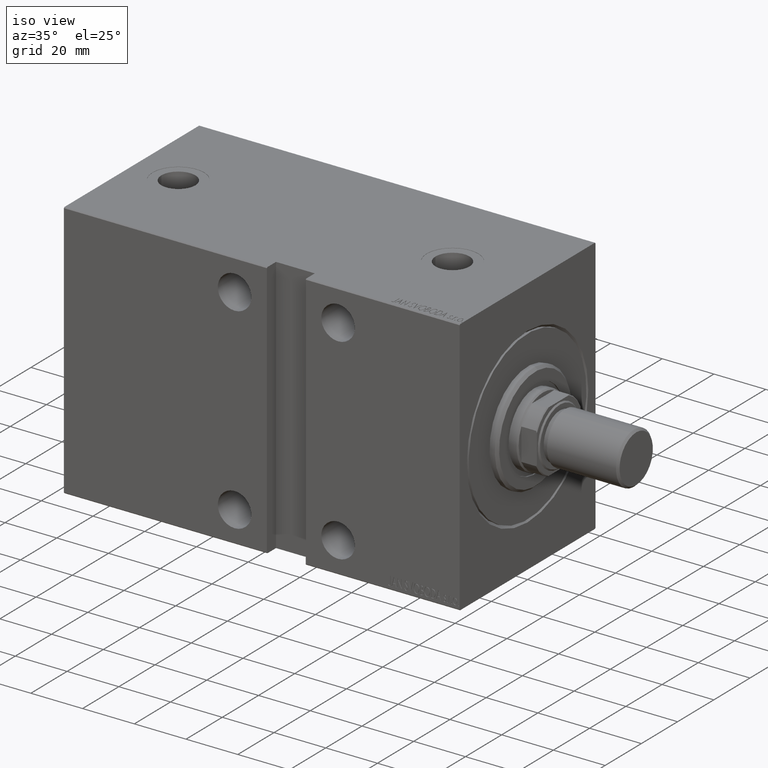
[diagram: clean part render]
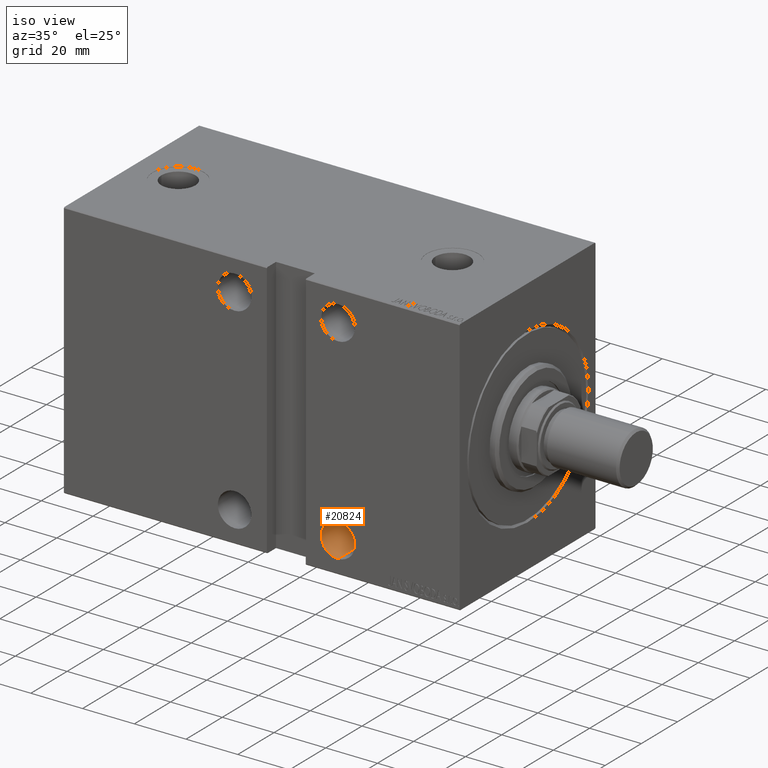
[diagram: same view with one face highlighted and labeled with its STEP entity id]
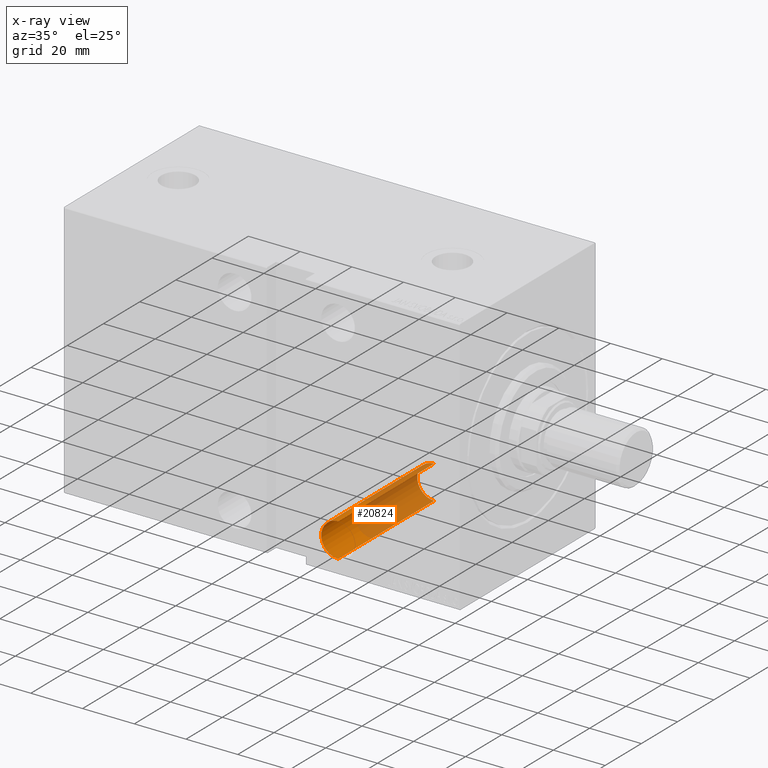
[diagram: x-ray of the same camera — body ghosted, the highlighted face saturated]
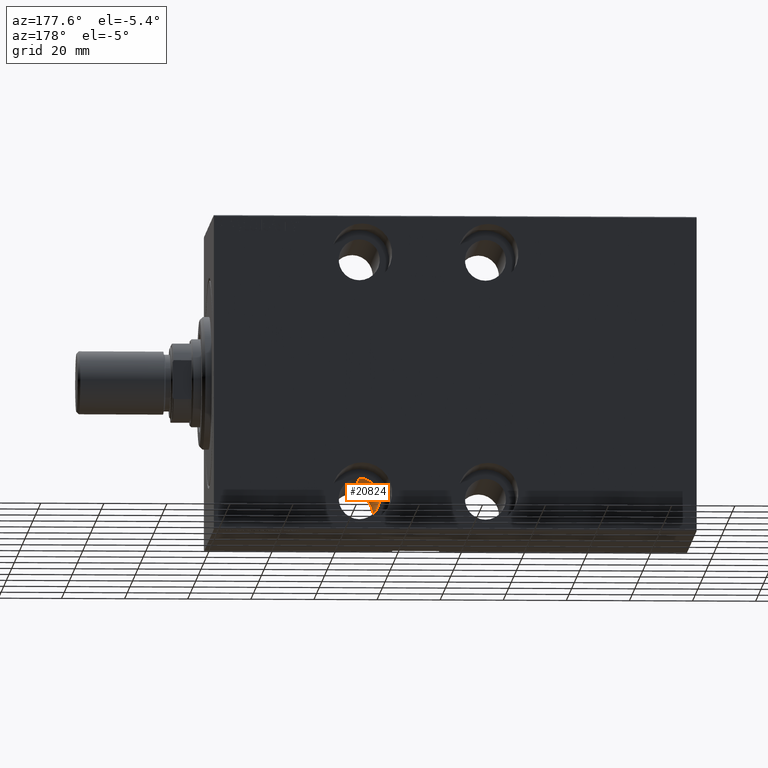
[diagram: same view with one face highlighted and labeled with its STEP entity id]
A machine part, iso view. The second image highlights one B-rep face of the part: STEP entity #20824.
The next image is the same camera in x-ray: the body ghosted, the highlighted face saturated — about 64% of this face is hidden behind the body in this view.
A second angle (auxiliary view) of the same face is appended — the face is thin or edge-on in the first view.
In plain terms, the highlighted cylindrical surface (edge-blend (fillet) strip) has radius 6.5 mm, axis along (0, -1, -0).
Its self-contained STEP definition (entity closure, byte-faithful):
#409 = CARTESIAN_POINT ( 'NONE',  ( 47.00000000000000000, -37.50000000000004974, -44.49999999999999289 ) ) ;
#3007 = AXIS2_PLACEMENT_3D ( 'NONE', #36929, #42975, #12246 ) ;
#3502 = DIRECTION ( 'NONE',  ( 0.000000000000000000, 0.000000000000000000, 1.000000000000000000 ) ) ;
#3652 = ORIENTED_EDGE ( 'NONE', *, *, #14104, .T. ) ;
#5195 = EDGE_CURVE ( 'NONE', #27376, #16462, #20336, .T. ) ;
#8578 = DIRECTION ( 'NONE',  ( -0.000000000000000000, 1.000000000000000000, -0.000000000000000000 ) ) ;
#9570 = FACE_OUTER_BOUND ( 'NONE', #26355, .T. ) ;
#9784 = CIRCLE ( 'NONE', #14747, 6.499999999999999112 ) ;
#10150 = VERTEX_POINT ( 'NONE', #41575 ) ;
#11576 = ORIENTED_EDGE ( 'NONE', *, *, #5195, .T. ) ;
#12246 = DIRECTION ( 'NONE',  ( 0.000000000000000000, 0.000000000000000000, 1.000000000000000000 ) ) ;
#13194 = CARTESIAN_POINT ( 'NONE',  ( 47.00000000000000000, -15.49999999999999289, -31.49999999999999289 ) ) ;
#14104 = EDGE_CURVE ( 'NONE', #16462, #10150, #34203, .T. ) ;
#14747 = AXIS2_PLACEMENT_3D ( 'NONE', #15525, #8578, #29206 ) ;
#15525 = CARTESIAN_POINT ( 'NONE',  ( 47.00000000000000000, -15.49999999999999289, -37.99999999999999289 ) ) ;
#16462 = VERTEX_POINT ( 'NONE', #31402 ) ;
#17404 = DIRECTION ( 'NONE',  ( -0.000000000000000000, 1.000000000000000000, -0.000000000000000000 ) ) ;
#17444 = LINE ( 'NONE', #409, #22360 ) ;
#17669 = DIRECTION ( 'NONE',  ( -0.000000000000000000, 1.000000000000000000, -0.000000000000000000 ) ) ;
#20312 = DIRECTION ( 'NONE',  ( 0.000000000000000000, 1.000000000000000000, 0.000000000000000000 ) ) ;
#20336 = LINE ( 'NONE', #35490, #28231 ) ;
#20824 = ADVANCED_FACE ( 'NONE', ( #9570 ), #22818, .F. ) ;
#21589 = EDGE_CURVE ( 'NONE', #42446, #10150, #17444, .T. ) ;
#22360 = VECTOR ( 'NONE', #17669, 1000.000000000000000 ) ;
#22818 = CYLINDRICAL_SURFACE ( 'NONE', #3007, 6.499999999999999112 ) ;
#24341 = CARTESIAN_POINT ( 'NONE',  ( 47.00000000000000000, 37.50000000000004263, -37.99999999999999289 ) ) ;
#24417 = CARTESIAN_POINT ( 'NONE',  ( 47.00000000000000000, -15.49999999999999289, -44.49999999999999289 ) ) ;
#26355 = EDGE_LOOP ( 'NONE', ( #34242, #30204, #11576, #3652 ) ) ;
#27376 = VERTEX_POINT ( 'NONE', #13194 ) ;
#27776 = AXIS2_PLACEMENT_3D ( 'NONE', #24341, #20312, #3502 ) ;
#28231 = VECTOR ( 'NONE', #17404, 1000.000000000000000 ) ;
#29206 = DIRECTION ( 'NONE',  ( 0.000000000000000000, 0.000000000000000000, -1.000000000000000000 ) ) ;
#30204 = ORIENTED_EDGE ( 'NONE', *, *, #36843, .F. ) ;
#31402 = CARTESIAN_POINT ( 'NONE',  ( 47.00000000000000000, 37.50000000000004263, -31.49999999999999289 ) ) ;
#34203 = CIRCLE ( 'NONE', #27776, 6.499999999999999112 ) ;
#34242 = ORIENTED_EDGE ( 'NONE', *, *, #21589, .F. ) ;
#35490 = CARTESIAN_POINT ( 'NONE',  ( 47.00000000000000000, -37.50000000000004974, -31.49999999999999289 ) ) ;
#36843 = EDGE_CURVE ( 'NONE', #27376, #42446, #9784, .T. ) ;
#36929 = CARTESIAN_POINT ( 'NONE',  ( 47.00000000000000000, -37.50000000000004974, -37.99999999999999289 ) ) ;
#41575 = CARTESIAN_POINT ( 'NONE',  ( 47.00000000000000000, 37.50000000000004263, -44.49999999999999289 ) ) ;
#42446 = VERTEX_POINT ( 'NONE', #24417 ) ;
#42975 = DIRECTION ( 'NONE',  ( -0.000000000000000000, 1.000000000000000000, -0.000000000000000000 ) ) ;